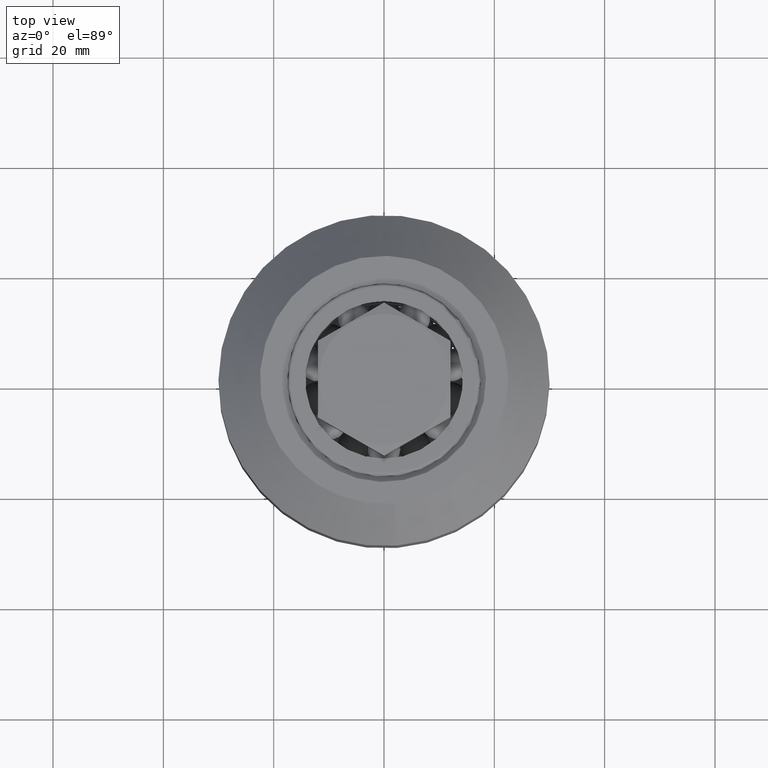
[diagram: clean part render]
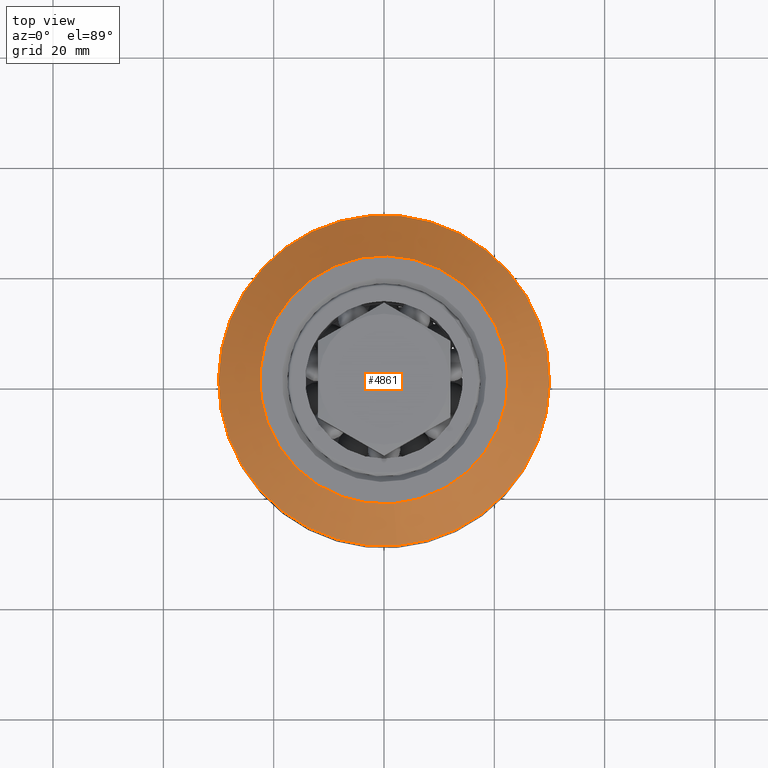
[diagram: same view with one face highlighted and labeled with its STEP entity id]
A machine part, top view. The second image highlights one B-rep face of the part: STEP entity #4861.
In plain terms, the highlighted conical surface has half-angle 45 deg.
Its self-contained STEP definition (entity closure, byte-faithful):
#473=FACE_OUTER_BOUND('',#750,.T.);
#750=EDGE_LOOP('',(#3397,#3398,#3399,#3400));
#1041=CIRCLE('',#5354,22.5);
#1044=CIRCLE('',#5360,30.);
#1314=LINE('',#7425,#1604);
#1604=VECTOR('',#6014,26.25);
#2032=VERTEX_POINT('',#7410);
#2035=VERTEX_POINT('',#7421);
#2568=EDGE_CURVE('',#2032,#2032,#1041,.T.);
#2573=EDGE_CURVE('',#2035,#2035,#1044,.T.);
#2575=EDGE_CURVE('',#2032,#2035,#1314,.T.);
#3397=ORIENTED_EDGE('',*,*,#2568,.F.);
#3398=ORIENTED_EDGE('',*,*,#2575,.T.);
#3399=ORIENTED_EDGE('',*,*,#2573,.T.);
#3400=ORIENTED_EDGE('',*,*,#2575,.F.);
#4822=CONICAL_SURFACE('',#5361,26.25,0.785398163397448);
#4861=ADVANCED_FACE('',(#473),#4822,.T.);
#5354=AXIS2_PLACEMENT_3D('',#7411,#5995,#5996);
#5360=AXIS2_PLACEMENT_3D('',#7422,#6009,#6010);
#5361=AXIS2_PLACEMENT_3D('',#7424,#6012,#6013);
#5995=DIRECTION('center_axis',(1.,0.,0.));
#5996=DIRECTION('ref_axis',(0.,1.,0.));
#6009=DIRECTION('center_axis',(1.,0.,0.));
#6010=DIRECTION('ref_axis',(0.,1.,0.));
#6012=DIRECTION('center_axis',(-1.,0.,0.));
#6013=DIRECTION('ref_axis',(0.,1.,0.));
#6014=DIRECTION('',(-0.707106781186548,-0.707106781186548,-8.65956056235493E-17));
#7410=CARTESIAN_POINT('',(20.,-22.5,-2.75545529808154E-15));
#7411=CARTESIAN_POINT('Origin',(20.,0.,0.));
#7421=CARTESIAN_POINT('',(12.5,-30.,-3.67394039744206E-15));
#7422=CARTESIAN_POINT('Origin',(12.5,0.,0.));
#7424=CARTESIAN_POINT('Origin',(16.25,0.,0.));
#7425=CARTESIAN_POINT('',(16.25,-26.25,-3.2146978477618E-15));